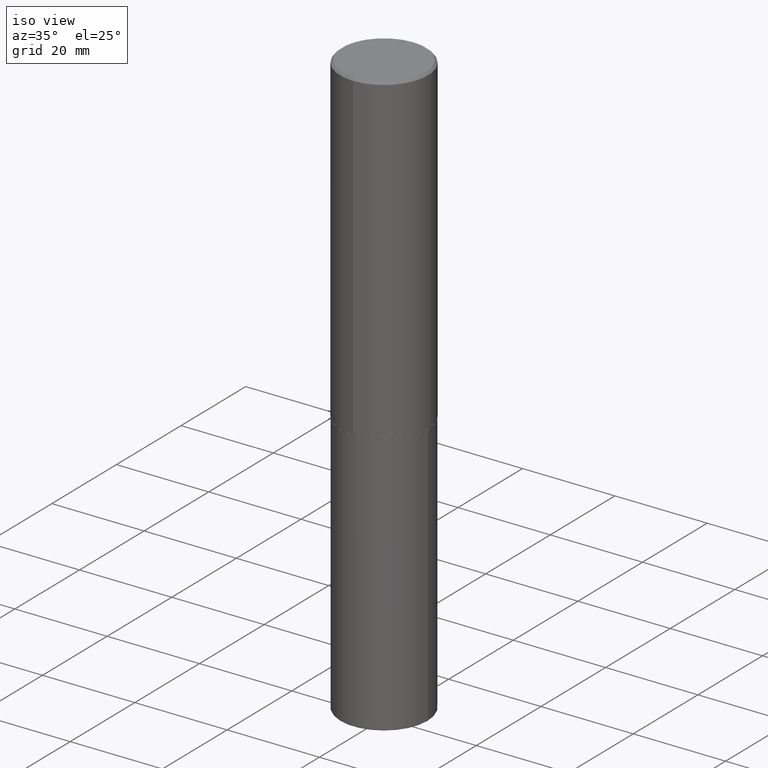
[diagram: clean part render]
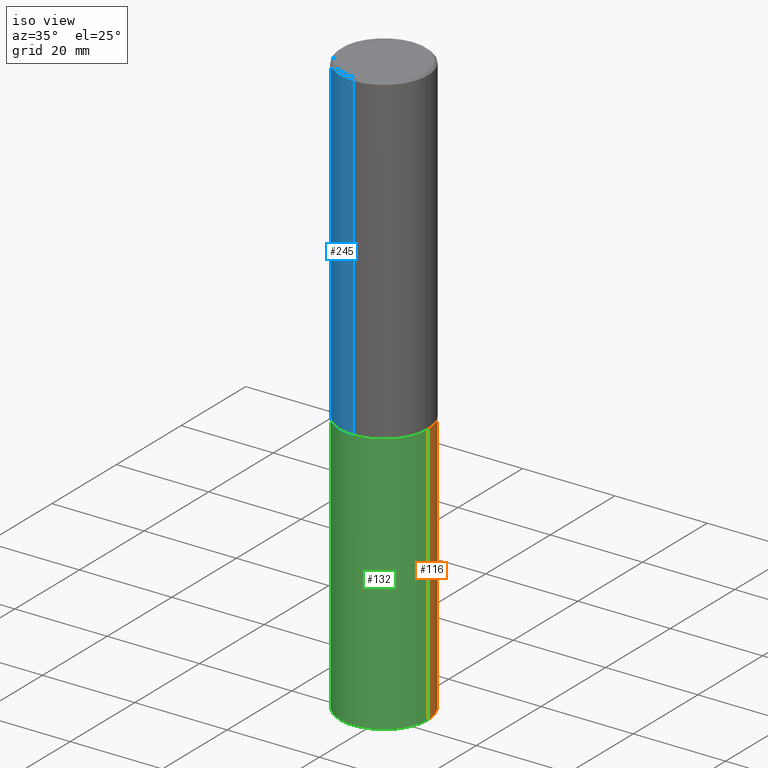
[diagram: same view with three faces highlighted in distinct colors, each labeled with its STEP entity id]
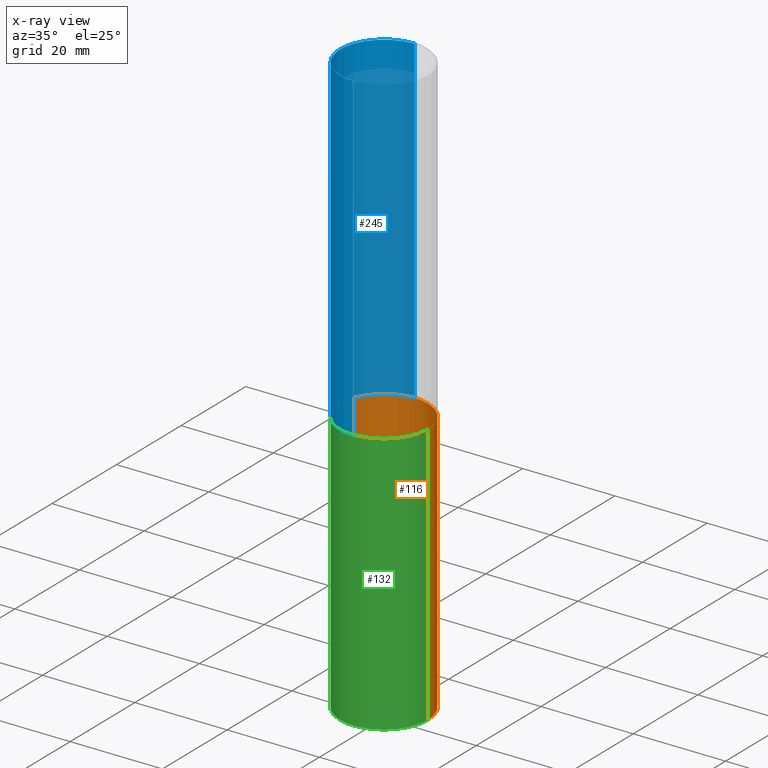
[diagram: x-ray of the same camera — body ghosted, the three highlighted faces saturated]
A machine part, iso view with three faces highlighted in distinct colors.
The next image is the same camera in x-ray (body ghosted, the three faces saturated) — at least one of them is partly hidden behind the body in this view.
Their STEP definitions:

[orange] entity #116 — the highlighted cylindrical surface (partial cylindrical patch) has radius 9.525 mm, axis along (-0, 0, 1).
#15 = CIRCLE ( 'NONE', #93, 0.3750000000000000555 ) ;
#45 = CARTESIAN_POINT ( 'NONE',  ( 0.000000000000000000, 0.000000000000000000, 0.000000000000000000 ) ) ;
#61 = ORIENTED_EDGE ( 'NONE', *, *, #314, .T. ) ;
#70 = DIRECTION ( 'NONE',  ( -2.445468806185136597E-29, 3.491481338843145583E-15, 1.000000000000000000 ) ) ;
#81 = LINE ( 'NONE', #150, #294 ) ;
#84 = CARTESIAN_POINT ( 'NONE',  ( 6.725039217009124520E-29, -9.601573681818649859E-15, -2.750000000000000000 ) ) ;
#86 = EDGE_CURVE ( 'NONE', #324, #318, #236, .T. ) ;
#93 = AXIS2_PLACEMENT_3D ( 'NONE', #222, #146, #282 ) ;
#98 = FACE_OUTER_BOUND ( 'NONE', #327, .T. ) ;
#113 = CIRCLE ( 'NONE', #360, 0.3750000000000000555 ) ;
#116 = ADVANCED_FACE ( 'NONE', ( #98 ), #368, .T. ) ;
#146 = DIRECTION ( 'NONE',  ( -2.445468806185136597E-29, 3.491481338843145583E-15, 1.000000000000000000 ) ) ;
#150 = CARTESIAN_POINT ( 'NONE',  ( -0.3750000000000000555, 2.664535259100376091E-15, -1.844600658845589598E-29 ) ) ;
#154 = EDGE_CURVE ( 'NONE', #324, #298, #15, .T. ) ;
#182 = EDGE_CURVE ( 'NONE', #318, #253, #113, .T. ) ;
#183 = CARTESIAN_POINT ( 'NONE',  ( -0.3750000000000000555, -1.084749752222259835E-14, -2.750000000000000000 ) ) ;
#200 = DIRECTION ( 'NONE',  ( -2.445468806185136877E-29, 3.491481338843145188E-15, 1.000000000000000000 ) ) ;
#211 = DIRECTION ( 'NONE',  ( -2.445468806185136597E-29, 3.491481338843145583E-15, 1.000000000000000000 ) ) ;
#216 = DIRECTION ( 'NONE',  ( -2.445468806185136877E-29, 3.491481338843145188E-15, 1.000000000000000000 ) ) ;
#219 = CARTESIAN_POINT ( 'NONE',  ( 0.3750000000000000555, -1.222018468595100145E-14, -2.750000000000000000 ) ) ;
#221 = VECTOR ( 'NONE', #200, 39.37007874015748143 ) ;
#222 = CARTESIAN_POINT ( 'NONE',  ( 1.220288934286383144E-28, -1.742249188082729666E-14, -4.990000000000000213 ) ) ;
#236 = LINE ( 'NONE', #366, #221 ) ;
#253 = VERTEX_POINT ( 'NONE', #183 ) ;
#282 = DIRECTION ( 'NONE',  ( 1.000000000000000000, -6.982962677686261189E-15, 0.000000000000000000 ) ) ;
#287 = CARTESIAN_POINT ( 'NONE',  ( -0.3750000000000003886, -1.475795662172691781E-14, -4.990000000000000213 ) ) ;
#294 = VECTOR ( 'NONE', #216, 39.37007874015748143 ) ;
#295 = ORIENTED_EDGE ( 'NONE', *, *, #182, .F. ) ;
#298 = VERTEX_POINT ( 'NONE', #287 ) ;
#311 = DIRECTION ( 'NONE',  ( 1.000000000000000000, -6.982962677686265922E-15, 4.876176775795935793E-29 ) ) ;
#314 = EDGE_CURVE ( 'NONE', #298, #253, #81, .T. ) ;
#318 = VERTEX_POINT ( 'NONE', #219 ) ;
#324 = VERTEX_POINT ( 'NONE', #351 ) ;
#327 = EDGE_LOOP ( 'NONE', ( #417, #61, #295, #335 ) ) ;
#335 = ORIENTED_EDGE ( 'NONE', *, *, #86, .F. ) ;
#344 = DIRECTION ( 'NONE',  ( 1.000000000000000000, -6.982962677686266711E-15, 0.000000000000000000 ) ) ;
#351 = CARTESIAN_POINT ( 'NONE',  ( 0.3750000000000003886, -2.004110288495964667E-14, -4.990000000000000213 ) ) ;
#353 = AXIS2_PLACEMENT_3D ( 'NONE', #45, #70, #311 ) ;
#360 = AXIS2_PLACEMENT_3D ( 'NONE', #84, #211, #344 ) ;
#366 = CARTESIAN_POINT ( 'NONE',  ( 0.3750000000000000555, -2.618611004132350016E-15, 1.828566290923476203E-29 ) ) ;
#368 = CYLINDRICAL_SURFACE ( 'NONE', #353, 0.3750000000000000555 ) ;
#417 = ORIENTED_EDGE ( 'NONE', *, *, #154, .T. ) ;

[blue] entity #245 — the highlighted cylindrical surface (partial cylindrical patch) has radius 9.525 mm, axis along (-0, 0, 1).
#1 = DIRECTION ( 'NONE',  ( -6.982962677686266711E-15, -1.000000000000000000, 3.490662795793665951E-15 ) ) ;
#10 = DIRECTION ( 'NONE',  ( -2.446040391741596606E-29, 3.490662795793665557E-15, 1.000000000000000000 ) ) ;
#33 = VERTEX_POINT ( 'NONE', #161 ) ;
#48 = LINE ( 'NONE', #58, #270 ) ;
#50 = AXIS2_PLACEMENT_3D ( 'NONE', #201, #10, #69 ) ;
#58 = CARTESIAN_POINT ( 'NONE',  ( 2.664535259100376880E-15, 0.3750000000000002220, -1.308998548422625521E-15 ) ) ;
#65 = EDGE_CURVE ( 'NONE', #197, #389, #68, .T. ) ;
#68 = LINE ( 'NONE', #128, #103 ) ;
#69 = DIRECTION ( 'NONE',  ( -6.982962677686265922E-15, -1.000000000000000000, 3.494488891895536035E-15 ) ) ;
#85 = VERTEX_POINT ( 'NONE', #396 ) ;
#103 = VECTOR ( 'NONE', #266, 39.37007874015748143 ) ;
#128 = CARTESIAN_POINT ( 'NONE',  ( -2.618611004132351594E-15, -0.3750000000000002220, 1.308998548422625521E-15 ) ) ;
#147 = DIRECTION ( 'NONE',  ( -6.982962677686265922E-15, -1.000000000000000000, 2.913971193241877611E-15 ) ) ;
#148 = AXIS2_PLACEMENT_3D ( 'NONE', #152, #252, #1 ) ;
#152 = CARTESIAN_POINT ( 'NONE',  ( 0.000000000000000000, 0.000000000000000000, 0.000000000000000000 ) ) ;
#160 = ORIENTED_EDGE ( 'NONE', *, *, #397, .F. ) ;
#161 = CARTESIAN_POINT ( 'NONE',  ( 2.664535259100411196E-15, 0.3749999999999907296, -2.749000000000000998 ) ) ;
#180 = EDGE_CURVE ( 'NONE', #33, #85, #48, .T. ) ;
#197 = VERTEX_POINT ( 'NONE', #254 ) ;
#201 = CARTESIAN_POINT ( 'NONE',  ( 4.892080783483214581E-31, -6.981325591587361238E-17, -0.02000000000000008715 ) ) ;
#227 = EDGE_CURVE ( 'NONE', #33, #197, #284, .T. ) ;
#228 = ORIENTED_EDGE ( 'NONE', *, *, #180, .F. ) ;
#235 = CARTESIAN_POINT ( 'NONE',  ( -2.572686749164323547E-15, -0.3750000000000001110, -0.01999999999999877570 ) ) ;
#245 = ADVANCED_FACE ( 'NONE', ( #355 ), #386, .T. ) ;
#248 = DIRECTION ( 'NONE',  ( -2.446040391741596606E-29, 3.490662795793665557E-15, 1.000000000000000000 ) ) ;
#252 = DIRECTION ( 'NONE',  ( -2.446040391741596606E-29, 3.490662795793665557E-15, 1.000000000000000000 ) ) ;
#254 = CARTESIAN_POINT ( 'NONE',  ( -2.618611004132284935E-15, -0.3750000000000099920, -2.748999999999999222 ) ) ;
#266 = DIRECTION ( 'NONE',  ( -2.446040391741596606E-29, 3.490662795793665557E-15, 1.000000000000000000 ) ) ;
#270 = VECTOR ( 'NONE', #248, 39.37007874015748143 ) ;
#271 = CIRCLE ( 'NONE', #50, 0.3750000000000000555 ) ;
#279 = AXIS2_PLACEMENT_3D ( 'NONE', #384, #317, #147 ) ;
#284 = CIRCLE ( 'NONE', #279, 0.3750000000000003886 ) ;
#286 = ORIENTED_EDGE ( 'NONE', *, *, #227, .T. ) ;
#289 = EDGE_LOOP ( 'NONE', ( #228, #286, #358, #160 ) ) ;
#317 = DIRECTION ( 'NONE',  ( -2.446040391741596606E-29, 3.490662795793665557E-15, 1.000000000000000000 ) ) ;
#355 = FACE_OUTER_BOUND ( 'NONE', #289, .T. ) ;
#358 = ORIENTED_EDGE ( 'NONE', *, *, #65, .T. ) ;
#384 = CARTESIAN_POINT ( 'NONE',  ( 6.724165036897648492E-29, -9.595832025636787455E-15, -2.749000000000000110 ) ) ;
#386 = CYLINDRICAL_SURFACE ( 'NONE', #148, 0.3750000000000002220 ) ;
#389 = VERTEX_POINT ( 'NONE', #235 ) ;
#396 = CARTESIAN_POINT ( 'NONE',  ( 2.618611004132350411E-15, 0.3749999999999999445, -0.02000000000000139513 ) ) ;
#397 = EDGE_CURVE ( 'NONE', #85, #389, #271, .T. ) ;

[green] entity #132 — the highlighted cylindrical surface (partial cylindrical patch) has radius 9.525 mm, axis along (-0, 0, 1).
#29 = DIRECTION ( 'NONE',  ( -2.445468806185136597E-29, 3.491481338843145583E-15, 1.000000000000000000 ) ) ;
#32 = CIRCLE ( 'NONE', #163, 0.3750000000000000555 ) ;
#35 = DIRECTION ( 'NONE',  ( 1.000000000000000000, -6.982962677686261189E-15, 0.000000000000000000 ) ) ;
#79 = CARTESIAN_POINT ( 'NONE',  ( 0.000000000000000000, 0.000000000000000000, 0.000000000000000000 ) ) ;
#81 = LINE ( 'NONE', #150, #294 ) ;
#86 = EDGE_CURVE ( 'NONE', #324, #318, #236, .T. ) ;
#97 = DIRECTION ( 'NONE',  ( -2.445468806185136597E-29, 3.491481338843145583E-15, 1.000000000000000000 ) ) ;
#101 = EDGE_LOOP ( 'NONE', ( #125, #341, #190, #291 ) ) ;
#125 = ORIENTED_EDGE ( 'NONE', *, *, #314, .F. ) ;
#132 = ADVANCED_FACE ( 'NONE', ( #277 ), #251, .T. ) ;
#138 = EDGE_CURVE ( 'NONE', #253, #318, #32, .T. ) ;
#150 = CARTESIAN_POINT ( 'NONE',  ( -0.3750000000000000555, 2.664535259100376091E-15, -1.844600658845589598E-29 ) ) ;
#163 = AXIS2_PLACEMENT_3D ( 'NONE', #218, #249, #380 ) ;
#183 = CARTESIAN_POINT ( 'NONE',  ( -0.3750000000000000555, -1.084749752222259835E-14, -2.750000000000000000 ) ) ;
#186 = CIRCLE ( 'NONE', #265, 0.3750000000000000555 ) ;
#190 = ORIENTED_EDGE ( 'NONE', *, *, #86, .T. ) ;
#200 = DIRECTION ( 'NONE',  ( -2.445468806185136877E-29, 3.491481338843145188E-15, 1.000000000000000000 ) ) ;
#214 = AXIS2_PLACEMENT_3D ( 'NONE', #79, #29, #281 ) ;
#216 = DIRECTION ( 'NONE',  ( -2.445468806185136877E-29, 3.491481338843145188E-15, 1.000000000000000000 ) ) ;
#218 = CARTESIAN_POINT ( 'NONE',  ( 6.725039217009124520E-29, -9.601573681818649859E-15, -2.750000000000000000 ) ) ;
#219 = CARTESIAN_POINT ( 'NONE',  ( 0.3750000000000000555, -1.222018468595100145E-14, -2.750000000000000000 ) ) ;
#221 = VECTOR ( 'NONE', #200, 39.37007874015748143 ) ;
#236 = LINE ( 'NONE', #366, #221 ) ;
#249 = DIRECTION ( 'NONE',  ( -2.445468806185136597E-29, 3.491481338843145583E-15, 1.000000000000000000 ) ) ;
#251 = CYLINDRICAL_SURFACE ( 'NONE', #214, 0.3750000000000000555 ) ;
#253 = VERTEX_POINT ( 'NONE', #183 ) ;
#265 = AXIS2_PLACEMENT_3D ( 'NONE', #323, #97, #35 ) ;
#277 = FACE_OUTER_BOUND ( 'NONE', #101, .T. ) ;
#281 = DIRECTION ( 'NONE',  ( 1.000000000000000000, -6.982962677686265922E-15, 4.876176775795935793E-29 ) ) ;
#287 = CARTESIAN_POINT ( 'NONE',  ( -0.3750000000000003886, -1.475795662172691781E-14, -4.990000000000000213 ) ) ;
#291 = ORIENTED_EDGE ( 'NONE', *, *, #138, .F. ) ;
#294 = VECTOR ( 'NONE', #216, 39.37007874015748143 ) ;
#298 = VERTEX_POINT ( 'NONE', #287 ) ;
#314 = EDGE_CURVE ( 'NONE', #298, #253, #81, .T. ) ;
#318 = VERTEX_POINT ( 'NONE', #219 ) ;
#323 = CARTESIAN_POINT ( 'NONE',  ( 1.220288934286383144E-28, -1.742249188082729666E-14, -4.990000000000000213 ) ) ;
#324 = VERTEX_POINT ( 'NONE', #351 ) ;
#341 = ORIENTED_EDGE ( 'NONE', *, *, #350, .T. ) ;
#350 = EDGE_CURVE ( 'NONE', #298, #324, #186, .T. ) ;
#351 = CARTESIAN_POINT ( 'NONE',  ( 0.3750000000000003886, -2.004110288495964667E-14, -4.990000000000000213 ) ) ;
#366 = CARTESIAN_POINT ( 'NONE',  ( 0.3750000000000000555, -2.618611004132350016E-15, 1.828566290923476203E-29 ) ) ;
#380 = DIRECTION ( 'NONE',  ( 1.000000000000000000, -6.982962677686266711E-15, 0.000000000000000000 ) ) ;